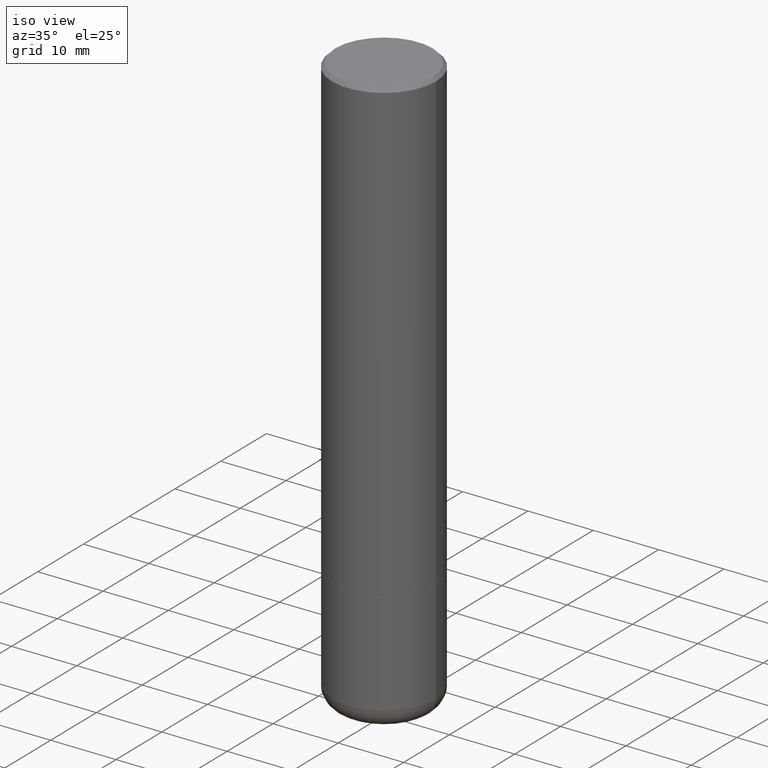
[diagram: clean part render]
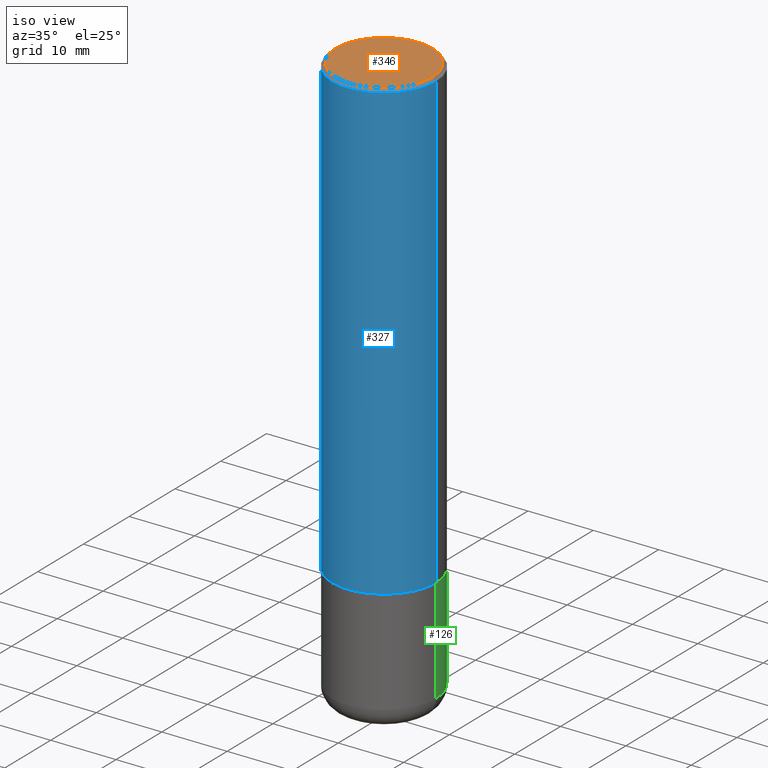
[diagram: same view with three faces highlighted in distinct colors, each labeled with its STEP entity id]
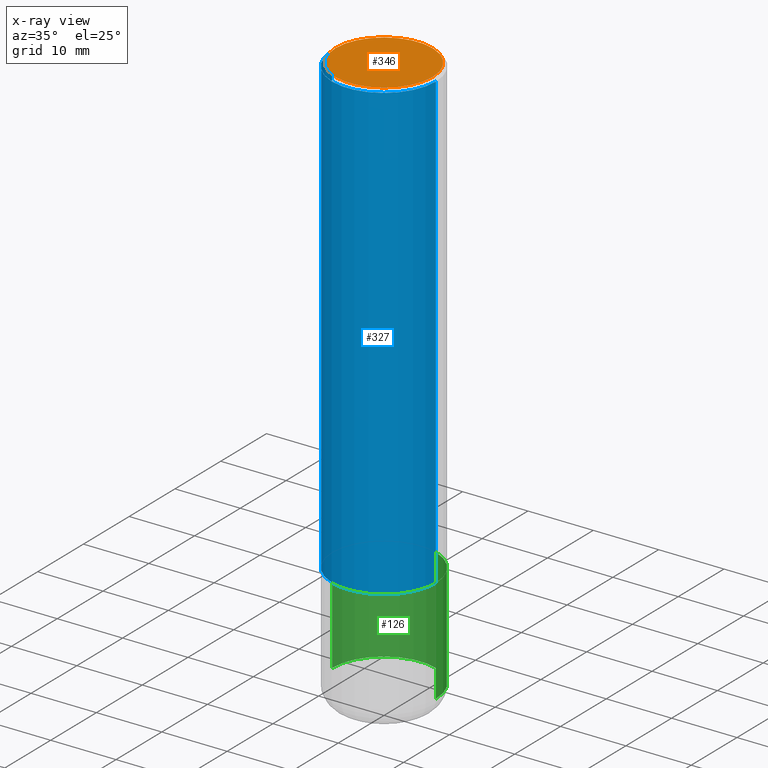
[diagram: x-ray of the same camera — body ghosted, the three highlighted faces saturated]
A machine part, iso view with three faces highlighted in distinct colors.
The next image is the same camera in x-ray (body ghosted, the three faces saturated) — at least one of them is partly hidden behind the body in this view.
Their STEP definitions:

[orange] entity #346 — the highlighted planar face has unit normal (0, -0, -1).
#24 = DIRECTION ( 'NONE',  ( 1.000000000000000000, -6.982962677686266711E-15, 4.876067333457705732E-29 ) ) ;
#53 = CARTESIAN_POINT ( 'NONE',  ( -2.087702828670439639E-46, 2.980686340760894400E-32, 8.537024980200822558E-18 ) ) ;
#58 = DIRECTION ( 'NONE',  ( -1.000000000000000000, 6.982962677686265922E-15, -4.876176775795935793E-29 ) ) ;
#61 = DIRECTION ( 'NONE',  ( -2.445468806185136597E-29, 3.491481338843145583E-15, 1.000000000000000000 ) ) ;
#95 = CARTESIAN_POINT ( 'NONE',  ( 2.042516583223226229E-15, 0.2924999999999990385, -1.016989779121516435E-15 ) ) ;
#139 = CARTESIAN_POINT ( 'NONE',  ( -2.087702828670439639E-46, 2.980686340760894400E-32, 8.537024980200822558E-18 ) ) ;
#165 = DIRECTION ( 'NONE',  ( -2.445468806185136597E-29, 3.491481338843145583E-15, 1.000000000000000000 ) ) ;
#176 = DIRECTION ( 'NONE',  ( 1.000000000000000000, -6.982962677686266711E-15, 4.876067333457705732E-29 ) ) ;
#188 = ORIENTED_EDGE ( 'NONE', *, *, #379, .T. ) ;
#194 = CARTESIAN_POINT ( 'NONE',  ( -0.2924999999999990385, 2.077431396611657878E-15, 8.537024980186416602E-18 ) ) ;
#202 = PLANE ( 'NONE',  #375 ) ;
#239 = VERTEX_POINT ( 'NONE', #376 ) ;
#243 = VERTEX_POINT ( 'NONE', #194 ) ;
#254 = CIRCLE ( 'NONE', #352, 0.2924999999999990385 ) ;
#308 = CIRCLE ( 'NONE', #361, 0.2924999999999990385 ) ;
#310 = DIRECTION ( 'NONE',  ( 2.438088387897960049E-29, -3.491481338843145188E-15, -1.000000000000000000 ) ) ;
#313 = FACE_OUTER_BOUND ( 'NONE', #399, .T. ) ;
#346 = ADVANCED_FACE ( 'NONE', ( #313 ), #202, .F. ) ;
#352 = AXIS2_PLACEMENT_3D ( 'NONE', #139, #165, #176 ) ;
#361 = AXIS2_PLACEMENT_3D ( 'NONE', #53, #61, #24 ) ;
#375 = AXIS2_PLACEMENT_3D ( 'NONE', #95, #310, #58 ) ;
#376 = CARTESIAN_POINT ( 'NONE',  ( 0.2924999999999990385, -2.110215457714314014E-15, 8.537024980215342529E-18 ) ) ;
#379 = EDGE_CURVE ( 'NONE', #243, #239, #308, .T. ) ;
#380 = EDGE_CURVE ( 'NONE', #239, #243, #254, .T. ) ;
#399 = EDGE_LOOP ( 'NONE', ( #188, #445 ) ) ;
#445 = ORIENTED_EDGE ( 'NONE', *, *, #380, .T. ) ;

[blue] entity #327 — the highlighted cylindrical surface (partial cylindrical patch) has radius 7.9375 mm, axis along (-0, 0, 1).
#6 = DIRECTION ( 'NONE',  ( -2.445468806185136877E-29, 3.491481338843145188E-15, 1.000000000000000000 ) ) ;
#9 = CARTESIAN_POINT ( 'NONE',  ( 0.3124999999999993339, -2.182175836776953614E-15, 1.523805242436226712E-29 ) ) ;
#27 = EDGE_LOOP ( 'NONE', ( #76, #321, #154, #317 ) ) ;
#76 = ORIENTED_EDGE ( 'NONE', *, *, #282, .F. ) ;
#77 = CARTESIAN_POINT ( 'NONE',  ( 6.722593748202942280E-29, -9.598082200479810007E-15, -2.749000000000000554 ) ) ;
#80 = CARTESIAN_POINT ( 'NONE',  ( 4.890937612370298557E-31, -6.982962677686327354E-17, -0.02000000000000010103 ) ) ;
#82 = CARTESIAN_POINT ( 'NONE',  ( -0.3124999999999993339, 2.220446049250308348E-15, -1.537167215704654869E-29 ) ) ;
#86 = AXIS2_PLACEMENT_3D ( 'NONE', #77, #273, #133 ) ;
#113 = VECTOR ( 'NONE', #191, 39.37007874015748143 ) ;
#129 = DIRECTION ( 'NONE',  ( 1.000000000000000000, -6.982962677686266711E-15, 4.876176775795935793E-29 ) ) ;
#133 = DIRECTION ( 'NONE',  ( 1.000000000000000000, -6.982962677686269077E-15, 0.000000000000000000 ) ) ;
#137 = CIRCLE ( 'NONE', #86, 0.3124999999999994449 ) ;
#141 = CARTESIAN_POINT ( 'NONE',  ( -0.3124999999999991673, 2.112346210000089527E-15, -0.02000000000000010103 ) ) ;
#154 = ORIENTED_EDGE ( 'NONE', *, *, #296, .T. ) ;
#191 = DIRECTION ( 'NONE',  ( -2.445468806185136877E-29, 3.491481338843145188E-15, 1.000000000000000000 ) ) ;
#207 = AXIS2_PLACEMENT_3D ( 'NONE', #80, #416, #341 ) ;
#210 = EDGE_CURVE ( 'NONE', #484, #261, #299, .T. ) ;
#215 = VERTEX_POINT ( 'NONE', #422 ) ;
#238 = CYLINDRICAL_SURFACE ( 'NONE', #471, 0.3124999999999993339 ) ;
#261 = VERTEX_POINT ( 'NONE', #456 ) ;
#273 = DIRECTION ( 'NONE',  ( -2.445468806185136597E-29, 3.491481338843145583E-15, 1.000000000000000000 ) ) ;
#282 = EDGE_CURVE ( 'NONE', #455, #484, #339, .T. ) ;
#290 = VECTOR ( 'NONE', #6, 39.37007874015748143 ) ;
#296 = EDGE_CURVE ( 'NONE', #215, #261, #413, .T. ) ;
#299 = CIRCLE ( 'NONE', #207, 0.3124999999999991673 ) ;
#309 = CARTESIAN_POINT ( 'NONE',  ( -0.3124999999999994449, -2.613509864378025150E-15, -2.749000000000000554 ) ) ;
#317 = ORIENTED_EDGE ( 'NONE', *, *, #210, .F. ) ;
#320 = EDGE_CURVE ( 'NONE', #455, #215, #137, .T. ) ;
#321 = ORIENTED_EDGE ( 'NONE', *, *, #320, .T. ) ;
#327 = ADVANCED_FACE ( 'NONE', ( #436 ), #238, .T. ) ;
#339 = LINE ( 'NONE', #82, #113 ) ;
#341 = DIRECTION ( 'NONE',  ( 1.000000000000000000, -6.982962677686267499E-15, 0.000000000000000000 ) ) ;
#356 = CARTESIAN_POINT ( 'NONE',  ( 0.000000000000000000, 0.000000000000000000, 0.000000000000000000 ) ) ;
#413 = LINE ( 'NONE', #9, #290 ) ;
#416 = DIRECTION ( 'NONE',  ( -2.445468806185136597E-29, 3.491481338843145583E-15, 1.000000000000000000 ) ) ;
#422 = CARTESIAN_POINT ( 'NONE',  ( 0.3124999999999994449, -1.178025803725676520E-14, -2.749000000000000554 ) ) ;
#436 = FACE_OUTER_BOUND ( 'NONE', #27, .T. ) ;
#455 = VERTEX_POINT ( 'NONE', #309 ) ;
#456 = CARTESIAN_POINT ( 'NONE',  ( 0.3124999999999991673, -2.213735251080460995E-15, -0.02000000000000010103 ) ) ;
#467 = DIRECTION ( 'NONE',  ( -2.445468806185136597E-29, 3.491481338843145583E-15, 1.000000000000000000 ) ) ;
#471 = AXIS2_PLACEMENT_3D ( 'NONE', #356, #467, #129 ) ;
#484 = VERTEX_POINT ( 'NONE', #141 ) ;

[green] entity #126 — the highlighted cylindrical surface (partial cylindrical patch) has radius 7.9375 mm, axis along (-0, 0, 1).
#11 = CYLINDRICAL_SURFACE ( 'NONE', #390, 0.3124999999999997224 ) ;
#46 = DIRECTION ( 'NONE',  ( 1.000000000000000000, -6.982962677686266711E-15, 4.876176775795936353E-29 ) ) ;
#47 = CARTESIAN_POINT ( 'NONE',  ( 8.265695738820817389E-29, -1.180122287867913601E-14, -3.380004569232299083 ) ) ;
#56 = ORIENTED_EDGE ( 'NONE', *, *, #363, .T. ) ;
#73 = EDGE_CURVE ( 'NONE', #114, #332, #151, .T. ) ;
#79 = AXIS2_PLACEMENT_3D ( 'NONE', #256, #343, #303 ) ;
#83 = CARTESIAN_POINT ( 'NONE',  ( -0.3125000000000000000, -8.480952230998579063E-15, -3.380004569232299083 ) ) ;
#114 = VERTEX_POINT ( 'NONE', #405 ) ;
#124 = DIRECTION ( 'NONE',  ( -2.445468806185136597E-29, 3.491481338843145583E-15, 1.000000000000000000 ) ) ;
#126 = ADVANCED_FACE ( 'NONE', ( #161 ), #11, .T. ) ;
#151 = LINE ( 'NONE', #453, #457 ) ;
#159 = CIRCLE ( 'NONE', #79, 0.3124999999999994449 ) ;
#161 = FACE_OUTER_BOUND ( 'NONE', #377, .T. ) ;
#179 = AXIS2_PLACEMENT_3D ( 'NONE', #47, #258, #459 ) ;
#182 = VERTEX_POINT ( 'NONE', #222 ) ;
#196 = EDGE_CURVE ( 'NONE', #114, #221, #423, .T. ) ;
#204 = LINE ( 'NONE', #267, #458 ) ;
#221 = VERTEX_POINT ( 'NONE', #83 ) ;
#222 = CARTESIAN_POINT ( 'NONE',  ( -0.3124999999999994449, -8.480952230998582218E-15, -2.750000000000000000 ) ) ;
#235 = CARTESIAN_POINT ( 'NONE',  ( 0.3124999999999994449, -1.178374951859560505E-14, -2.750000000000000000 ) ) ;
#256 = CARTESIAN_POINT ( 'NONE',  ( 6.725039217009124520E-29, -9.601573681818649859E-15, -2.750000000000000000 ) ) ;
#258 = DIRECTION ( 'NONE',  ( -2.445468806185136597E-29, 3.491481338843145583E-15, 1.000000000000000000 ) ) ;
#267 = CARTESIAN_POINT ( 'NONE',  ( -0.3124999999999997224, 2.220446049250311109E-15, -1.537167215704656831E-29 ) ) ;
#285 = ORIENTED_EDGE ( 'NONE', *, *, #293, .F. ) ;
#293 = EDGE_CURVE ( 'NONE', #332, #182, #159, .T. ) ;
#303 = DIRECTION ( 'NONE',  ( 1.000000000000000000, -6.982962677686269077E-15, 0.000000000000000000 ) ) ;
#322 = DIRECTION ( 'NONE',  ( -2.445468806185136877E-29, 3.491481338843145188E-15, 1.000000000000000000 ) ) ;
#323 = ORIENTED_EDGE ( 'NONE', *, *, #73, .F. ) ;
#332 = VERTEX_POINT ( 'NONE', #235 ) ;
#343 = DIRECTION ( 'NONE',  ( -2.445468806185136597E-29, 3.491481338843145583E-15, 1.000000000000000000 ) ) ;
#363 = EDGE_CURVE ( 'NONE', #221, #182, #204, .T. ) ;
#377 = EDGE_LOOP ( 'NONE', ( #487, #56, #285, #323 ) ) ;
#390 = AXIS2_PLACEMENT_3D ( 'NONE', #460, #124, #46 ) ;
#405 = CARTESIAN_POINT ( 'NONE',  ( 0.3125000000000000000, -1.398339871545609435E-14, -3.380004569232299083 ) ) ;
#423 = CIRCLE ( 'NONE', #179, 0.3125000000000000000 ) ;
#453 = CARTESIAN_POINT ( 'NONE',  ( 0.3124999999999997224, -2.182175836776956375E-15, 1.523805242436228674E-29 ) ) ;
#457 = VECTOR ( 'NONE', #322, 39.37007874015748143 ) ;
#458 = VECTOR ( 'NONE', #465, 39.37007874015748143 ) ;
#459 = DIRECTION ( 'NONE',  ( 1.000000000000000000, -6.982962677686269077E-15, 0.000000000000000000 ) ) ;
#460 = CARTESIAN_POINT ( 'NONE',  ( 0.000000000000000000, 0.000000000000000000, 0.000000000000000000 ) ) ;
#465 = DIRECTION ( 'NONE',  ( -2.445468806185136877E-29, 3.491481338843145188E-15, 1.000000000000000000 ) ) ;
#487 = ORIENTED_EDGE ( 'NONE', *, *, #196, .T. ) ;